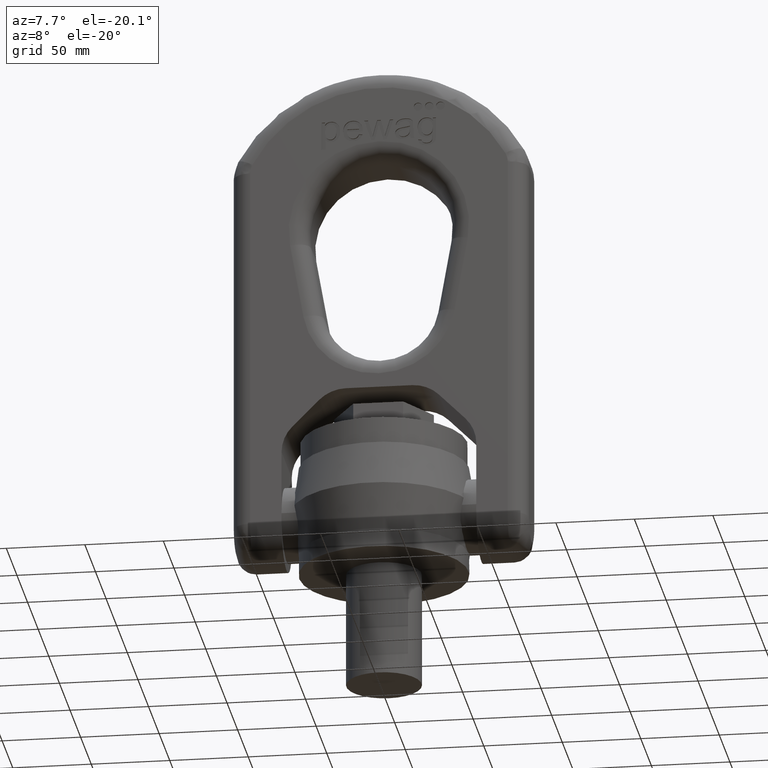
[diagram: clean part render]
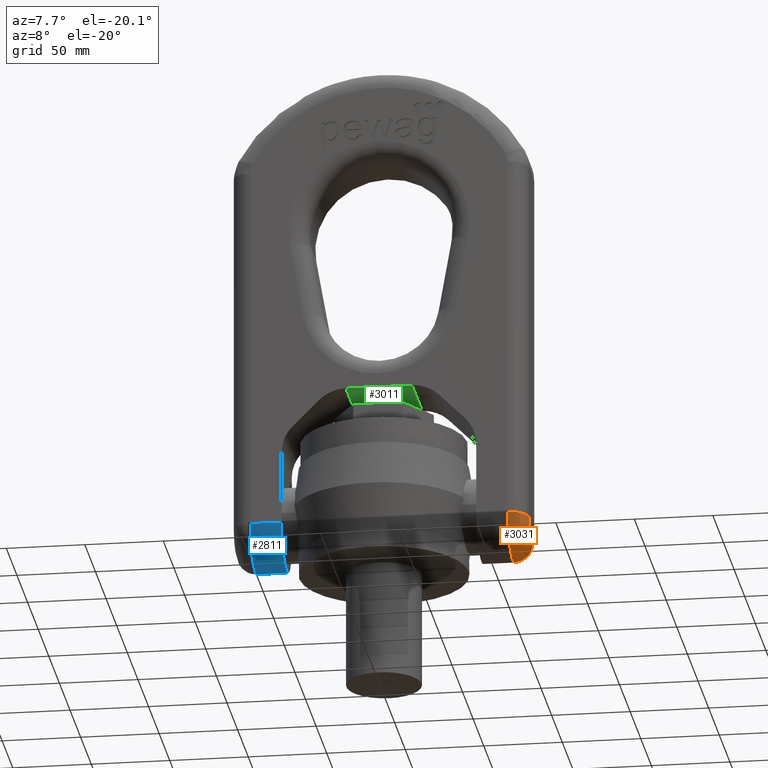
[diagram: same view with three faces highlighted in distinct colors, each labeled with its STEP entity id]
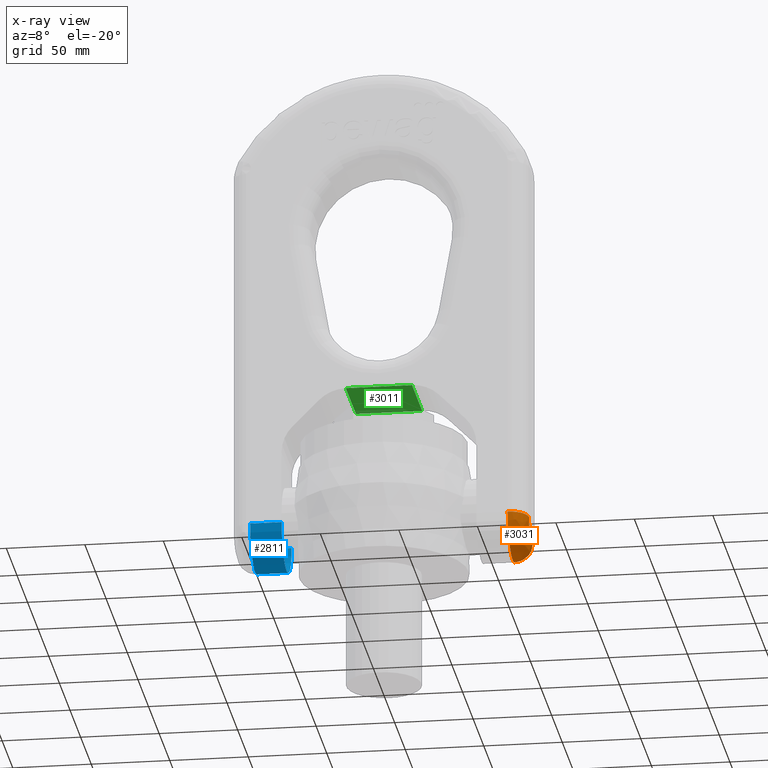
[diagram: x-ray of the same camera — body ghosted, the three highlighted faces saturated]
A machine part, auxiliary view with three faces highlighted in distinct colors.
The next image is the same camera in x-ray (body ghosted, the three faces saturated) — at least one of them is partly hidden behind the body in this view.
Their STEP definitions:

[orange] entity #3031 — the highlighted face is a freeform B-spline surface patch.
#212=(
BOUNDED_SURFACE()
B_SPLINE_SURFACE(3,3,((#9813,#9814,#9815,#9816),(#9817,#9818,#9819,#9820),
(#9821,#9822,#9823,#9824),(#9825,#9826,#9827,#9828)),.UNSPECIFIED.,.F.,
 .F.,.F.)
B_SPLINE_SURFACE_WITH_KNOTS((4,4),(4,4),(0.,1.),(0.,1.),.UNSPECIFIED.)
GEOMETRIC_REPRESENTATION_ITEM()
RATIONAL_B_SPLINE_SURFACE(((1.,0.333333333333333,0.333333333333333,1.),
(0.804737854124365,0.268245951374788,0.268245951374788,0.804737854124365),
(0.804737854124365,0.268245951374788,0.268245951374788,0.804737854124365),
(1.,0.333333333333333,0.333333333333333,1.)))
REPRESENTATION_ITEM('')
SURFACE()
);
#2656=FACE_OUTER_BOUND('',#3424,.T.);
#3031=ADVANCED_FACE('',(#2656),#212,.T.);
#3424=EDGE_LOOP('',(#4661,#4662,#4663,#4664));
#4661=ORIENTED_EDGE('',*,*,#5739,.T.);
#4662=ORIENTED_EDGE('',*,*,#5174,.F.);
#4663=ORIENTED_EDGE('',*,*,#5740,.T.);
#4664=ORIENTED_EDGE('',*,*,#5364,.F.);
#4741=VERTEX_POINT('',#7064);
#4742=VERTEX_POINT('',#7066);
#4923=VERTEX_POINT('',#7752);
#4924=VERTEX_POINT('',#7753);
#5174=EDGE_CURVE('',#4741,#4742,#5762,.T.);
#5364=EDGE_CURVE('',#4923,#4924,#5790,.T.);
#5739=EDGE_CURVE('',#4923,#4742,#5817,.T.);
#5740=EDGE_CURVE('',#4741,#4924,#5818,.T.);
#5762=CIRCLE('',#5867,23.9999999999999);
#5790=CIRCLE('',#5902,11.9999999999999);
#5817=CIRCLE('',#6044,12.);
#5818=CIRCLE('',#6046,12.);
#5867=AXIS2_PLACEMENT_3D('',#7065,#6188,#6189);
#5902=AXIS2_PLACEMENT_3D('',#7751,#6352,#6353);
#6044=AXIS2_PLACEMENT_3D('',#9809,#6896,#6897);
#6046=AXIS2_PLACEMENT_3D('',#9811,#6900,#6901);
#6188=DIRECTION('',(-1.,0.,-1.04738021191052E-16));
#6189=DIRECTION('',(0.,0.,1.));
#6352=DIRECTION('',(1.,0.,1.04738021191052E-16));
#6353=DIRECTION('',(0.,0.,1.));
#6896=DIRECTION('',(0.,0.,-1.));
#6897=DIRECTION('',(-1.,0.,0.));
#6900=DIRECTION('',(0.,0.,-1.));
#6901=DIRECTION('',(-1.,0.,0.));
#7064=CARTESIAN_POINT('',(82.,23.9999999999998,29.9999999999999));
#7065=CARTESIAN_POINT('',(82.,-9.69599696040653E-14,29.9999999999999));
#7066=CARTESIAN_POINT('',(82.,-24.,29.9999999999999));
#7751=CARTESIAN_POINT('',(94.,-9.69599696040654E-14,29.9999999999999));
#7752=CARTESIAN_POINT('',(94.,-12.,29.9999999999999));
#7753=CARTESIAN_POINT('',(94.,11.9999999999998,29.9999999999999));
#9809=CARTESIAN_POINT('',(82.,-12.,29.9999999999999));
#9811=CARTESIAN_POINT('',(82.,11.9999999999998,29.9999999999999));
#9813=CARTESIAN_POINT('',(82.,23.9999999999998,29.9999999999999));
#9814=CARTESIAN_POINT('',(82.,23.9999999999998,-17.9999999999999));
#9815=CARTESIAN_POINT('',(82.,-24.,-17.9999999999999));
#9816=CARTESIAN_POINT('',(82.,-24.,29.9999999999999));
#9817=CARTESIAN_POINT('',(89.0294372515229,23.9999999999998,29.9999999999999));
#9818=CARTESIAN_POINT('',(89.0294372515229,23.9999999999998,-17.9999999999999));
#9819=CARTESIAN_POINT('',(89.0294372515229,-24.,-17.9999999999999));
#9820=CARTESIAN_POINT('',(89.0294372515229,-24.,29.9999999999999));
#9821=CARTESIAN_POINT('',(94.,19.0294372515227,29.9999999999999));
#9822=CARTESIAN_POINT('',(94.,19.0294372515227,-8.0588745030456));
#9823=CARTESIAN_POINT('',(94.,-19.0294372515229,-8.0588745030456));
#9824=CARTESIAN_POINT('',(94.,-19.0294372515229,29.9999999999999));
#9825=CARTESIAN_POINT('',(94.,11.9999999999998,29.9999999999999));
#9826=CARTESIAN_POINT('',(94.,11.9999999999998,6.00000000000013));
#9827=CARTESIAN_POINT('',(94.,-12.,6.00000000000013));
#9828=CARTESIAN_POINT('',(94.,-12.,29.9999999999999));

[blue] entity #2811 — the highlighted cylindrical surface (partial cylindrical patch) has radius 24 mm, axis along (-1, 0, 0).
#1770=LINE('',#7054,#2078);
#1771=LINE('',#7059,#2079);
#2078=VECTOR('',#6179,1.);
#2079=VECTOR('',#6182,1.);
#2453=FACE_OUTER_BOUND('',#3171,.T.);
#2811=ADVANCED_FACE('',(#2453),#3043,.T.);
#3043=CYLINDRICAL_SURFACE('',#5866,23.9999999999999);
#3171=EDGE_LOOP('',(#3529,#3530,#3531,#3532));
#3529=ORIENTED_EDGE('',*,*,#5169,.F.);
#3530=ORIENTED_EDGE('',*,*,#5170,.T.);
#3531=ORIENTED_EDGE('',*,*,#5171,.F.);
#3532=ORIENTED_EDGE('',*,*,#5172,.T.);
#4737=VERTEX_POINT('',#7055);
#4738=VERTEX_POINT('',#7056);
#4739=VERTEX_POINT('',#7058);
#4740=VERTEX_POINT('',#7060);
#5169=EDGE_CURVE('',#4737,#4738,#1770,.T.);
#5170=EDGE_CURVE('',#4737,#4739,#5760,.T.);
#5171=EDGE_CURVE('',#4740,#4739,#1771,.T.);
#5172=EDGE_CURVE('',#4740,#4738,#5761,.T.);
#5760=CIRCLE('',#5864,23.9999999999999);
#5761=CIRCLE('',#5865,23.9999999999999);
#5864=AXIS2_PLACEMENT_3D('',#7057,#6180,#6181);
#5865=AXIS2_PLACEMENT_3D('',#7061,#6183,#6184);
#5866=AXIS2_PLACEMENT_3D('',#7062,#6185,#6186);
#6179=DIRECTION('',(1.,0.,-1.16263381900573E-15));
#6180=DIRECTION('',(1.,0.,-1.04738021191052E-16));
#6181=DIRECTION('',(0.,0.,-1.));
#6182=DIRECTION('',(-1.,2.34291072916505E-15,1.16263381900573E-15));
#6183=DIRECTION('',(-1.,0.,2.39272203583008E-16));
#6184=DIRECTION('',(-2.89120579329469E-16,0.,-1.));
#6185=DIRECTION('',(-1.,1.17186107153752E-15,1.16263381900573E-15));
#6186=DIRECTION('',(-1.15648231731788E-15,-1.,0.));
#7054=CARTESIAN_POINT('',(94.0000000000001,-24.,29.9999999999999));
#7055=CARTESIAN_POINT('',(-82.,-24.,30.0000000000001));
#7056=CARTESIAN_POINT('',(-62.04,-23.9999999999998,30.));
#7057=CARTESIAN_POINT('',(-82.,9.52252461280885E-14,30.0000000000001));
#7058=CARTESIAN_POINT('',(-82.,24.0000000000002,30.0000000000001));
#7059=CARTESIAN_POINT('',(94.0000000000001,23.9999999999998,29.9999999999999));
#7060=CARTESIAN_POINT('',(-62.04,24.0000000000001,29.9999999999999));
#7061=CARTESIAN_POINT('',(-62.04,7.18348991401996E-14,30.0000000000001));
#7062=CARTESIAN_POINT('',(94.0000000000001,-1.11022302462516E-13,29.9999999999999));

[green] entity #3011 — the highlighted planar face has unit normal (0, 0, -1).
#1780=LINE('',#7093,#2088);
#1820=LINE('',#7415,#2128);
#2033=LINE('',#9698,#2431);
#2034=LINE('',#9699,#2432);
#2088=VECTOR('',#6213,1.);
#2128=VECTOR('',#6275,1.);
#2431=VECTOR('',#6838,1.);
#2432=VECTOR('',#6839,1.);
#2637=FACE_OUTER_BOUND('',#3403,.T.);
#2784=PLANE('',#6017);
#3011=ADVANCED_FACE('',(#2637),#2784,.T.);
#3403=EDGE_LOOP('',(#4581,#4582,#4583,#4584));
#4581=ORIENTED_EDGE('',*,*,#5189,.F.);
#4582=ORIENTED_EDGE('',*,*,#5721,.T.);
#4583=ORIENTED_EDGE('',*,*,#5273,.F.);
#4584=ORIENTED_EDGE('',*,*,#5722,.T.);
#4753=VERTEX_POINT('',#7092);
#4754=VERTEX_POINT('',#7094);
#4836=VERTEX_POINT('',#7414);
#4837=VERTEX_POINT('',#7416);
#5189=EDGE_CURVE('',#4753,#4754,#1780,.T.);
#5273=EDGE_CURVE('',#4836,#4837,#1820,.T.);
#5721=EDGE_CURVE('',#4753,#4837,#2033,.T.);
#5722=EDGE_CURVE('',#4836,#4754,#2034,.T.);
#6017=AXIS2_PLACEMENT_3D('',#9700,#6840,#6841);
#6213=DIRECTION('',(1.,0.,0.));
#6275=DIRECTION('',(-1.,2.34291072916505E-15,0.));
#6838=DIRECTION('',(0.,1.,0.));
#6839=DIRECTION('',(0.,-1.,0.));
#6840=DIRECTION('',(0.,0.,-1.));
#6841=DIRECTION('',(-1.,0.,0.));
#7092=CARTESIAN_POINT('',(-21.0988745030457,-24.,118.));
#7093=CARTESIAN_POINT('',(0.,-24.,118.));
#7094=CARTESIAN_POINT('',(21.0988745030457,-24.,118.));
#7414=CARTESIAN_POINT('',(21.0988745030457,24.,118.));
#7415=CARTESIAN_POINT('',(5.62298574999612E-14,24.,118.));
#7416=CARTESIAN_POINT('',(-21.0988745030457,24.0000000000001,118.));
#9698=CARTESIAN_POINT('',(-21.0988745030457,24.0000000000001,118.));
#9699=CARTESIAN_POINT('',(21.0988745030457,-24.,118.));
#9700=CARTESIAN_POINT('',(31.0399999999999,-65.0248306846,118.));